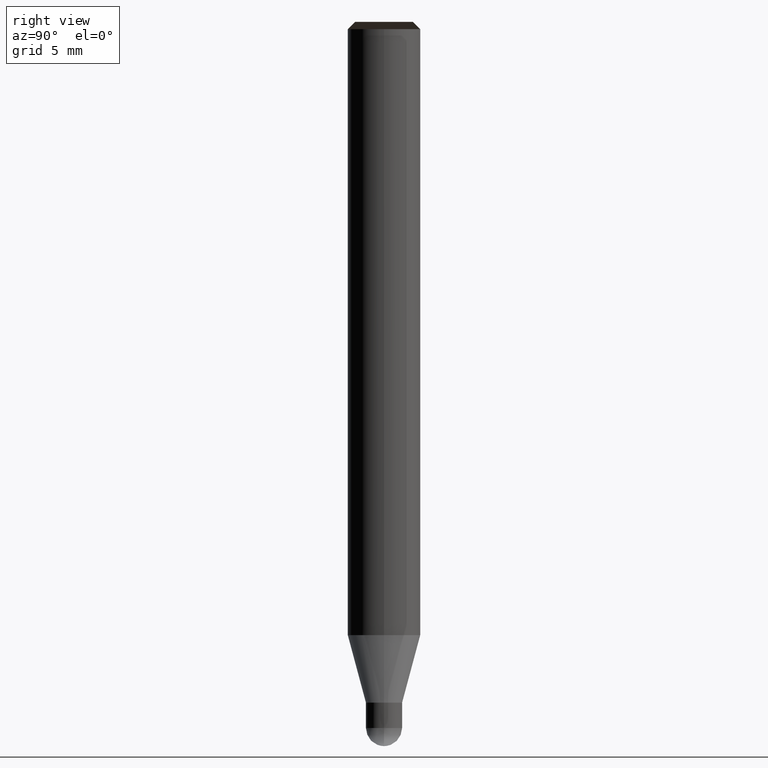
[diagram: clean part render]
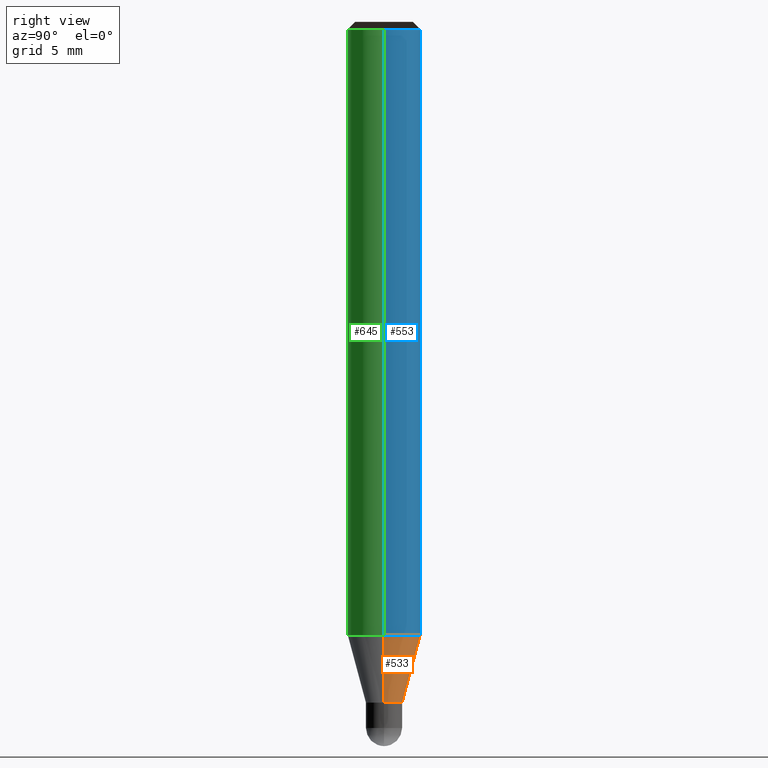
[diagram: same view with three faces highlighted in distinct colors, each labeled with its STEP entity id]
A machine part, right view with three faces highlighted in distinct colors.
Their STEP definitions:

[orange] entity #533 — the highlighted face is a freeform B-spline surface patch.
#343=CARTESIAN_POINT('',(1.0,0.0,-3.732050807569));
#344=CARTESIAN_POINT('',(1.0,1.0,-3.732050807569));
#345=CARTESIAN_POINT('',(0.0,1.0,-3.732050807569));
#346=CARTESIAN_POINT('',(-1.0,1.0,-3.732050807569));
#347=CARTESIAN_POINT('',(-1.0,0.0,-3.732050807569));
#358=CARTESIAN_POINT('',(2.0,0.0,0.0));
#359=CARTESIAN_POINT('',(2.0,2.0,0.0));
#360=CARTESIAN_POINT('',(0.0,2.0,0.0));
#361=CARTESIAN_POINT('',(-2.0,2.0,0.0));
#362=CARTESIAN_POINT('',(-2.0,0.0,0.0));
#514=(
BOUNDED_SURFACE()
B_SPLINE_SURFACE(1,2,(
(#343,#344,#345,#346,#347),
(#358,#359,#360,#361,#362)
), .UNSPECIFIED.,.F.,.F.,.F.)
B_SPLINE_SURFACE_WITH_KNOTS((2,2),(3,2,3),(
0.0,1.0),(
0.0,0.5,1.0), .UNSPECIFIED.)
GEOMETRIC_REPRESENTATION_ITEM()
RATIONAL_B_SPLINE_SURFACE(((1.0,0.707106781187,1.0,0.707106781187,1.0),
(1.0,0.707106781187,1.0,0.707106781187,1.0)
))
REPRESENTATION_ITEM('')
SURFACE()
);
#515=(
BOUNDED_CURVE()
B_SPLINE_CURVE(2,(#358,#359,#360,#361,#362),.UNSPECIFIED.,.F.,.F.)
B_SPLINE_CURVE_WITH_KNOTS((3,2,3),
(0.0,0.5,1.0),.UNSPECIFIED.)
CURVE()
GEOMETRIC_REPRESENTATION_ITEM()
RATIONAL_B_SPLINE_CURVE((1.0,0.707106781187,1.0,0.707106781187,1.0))
REPRESENTATION_ITEM('')
);
#516=(
BOUNDED_CURVE()
B_SPLINE_CURVE(1,(#362,#347),.UNSPECIFIED.,.F.,.F.)
B_SPLINE_CURVE_WITH_KNOTS((2,2),
(0.0,1.0),.UNSPECIFIED.)
CURVE()
GEOMETRIC_REPRESENTATION_ITEM()
RATIONAL_B_SPLINE_CURVE((1.0,1.0))
REPRESENTATION_ITEM('')
);
#517=(
BOUNDED_CURVE()
B_SPLINE_CURVE(2,(#347,#346,#345,#344,#343),.UNSPECIFIED.,.F.,.F.)
B_SPLINE_CURVE_WITH_KNOTS((3,2,3),
(0.0,0.5,1.0),.UNSPECIFIED.)
CURVE()
GEOMETRIC_REPRESENTATION_ITEM()
RATIONAL_B_SPLINE_CURVE((1.0,0.707106781187,1.0,0.707106781187,1.0))
REPRESENTATION_ITEM('')
);
#518=(
BOUNDED_CURVE()
B_SPLINE_CURVE(1,(#343,#358),.UNSPECIFIED.,.F.,.F.)
B_SPLINE_CURVE_WITH_KNOTS((2,2),
(0.0,1.0),.UNSPECIFIED.)
CURVE()
GEOMETRIC_REPRESENTATION_ITEM()
RATIONAL_B_SPLINE_CURVE((1.0,1.0))
REPRESENTATION_ITEM('')
);
#519=VERTEX_POINT('',#343);
#520=VERTEX_POINT('',#347);
#521=VERTEX_POINT('',#358);
#522=VERTEX_POINT('',#362);
#523=EDGE_CURVE('',#521,#522,#515,.T.);
#524=EDGE_CURVE('',#522,#520,#516,.T.);
#525=EDGE_CURVE('',#520,#519,#517,.T.);
#526=EDGE_CURVE('',#519,#521,#518,.T.);
#527=ORIENTED_EDGE('',*,*,#523,.T.);
#528=ORIENTED_EDGE('',*,*,#524,.T.);
#529=ORIENTED_EDGE('',*,*,#525,.T.);
#530=ORIENTED_EDGE('',*,*,#526,.T.);
#531=EDGE_LOOP('',(#527,#528,#529,#530));
#532=FACE_OUTER_BOUND('',#531,.T.);
#533=ADVANCED_FACE('',(#532),#514,.T.);

[blue] entity #553 — the highlighted face is a freeform B-spline surface patch.
#358=CARTESIAN_POINT('',(2.0,0.0,0.0));
#359=CARTESIAN_POINT('',(2.0,2.0,0.0));
#360=CARTESIAN_POINT('',(0.0,2.0,0.0));
#361=CARTESIAN_POINT('',(-2.0,2.0,0.0));
#362=CARTESIAN_POINT('',(-2.0,0.0,0.0));
#363=CARTESIAN_POINT('',(2.0,0.0,33.467949192431));
#364=CARTESIAN_POINT('',(2.0,2.0,33.467949192431));
#365=CARTESIAN_POINT('',(0.0,2.0,33.467949192431));
#366=CARTESIAN_POINT('',(-2.0,2.0,33.467949192431));
#367=CARTESIAN_POINT('',(-2.0,0.0,33.467949192431));
#534=(
BOUNDED_SURFACE()
B_SPLINE_SURFACE(1,2,(
(#358,#359,#360,#361,#362),
(#363,#364,#365,#366,#367)
), .UNSPECIFIED.,.F.,.F.,.F.)
B_SPLINE_SURFACE_WITH_KNOTS((2,2),(3,2,3),(
0.0,1.0),(
0.0,0.5,1.0), .UNSPECIFIED.)
GEOMETRIC_REPRESENTATION_ITEM()
RATIONAL_B_SPLINE_SURFACE(((1.0,0.707106781187,1.0,0.707106781187,1.0),
(1.0,0.707106781187,1.0,0.707106781187,1.0)
))
REPRESENTATION_ITEM('')
SURFACE()
);
#535=(
BOUNDED_CURVE()
B_SPLINE_CURVE(2,(#363,#364,#365,#366,#367),.UNSPECIFIED.,.F.,.F.)
B_SPLINE_CURVE_WITH_KNOTS((3,2,3),
(0.0,0.5,1.0),.UNSPECIFIED.)
CURVE()
GEOMETRIC_REPRESENTATION_ITEM()
RATIONAL_B_SPLINE_CURVE((1.0,0.707106781187,1.0,0.707106781187,1.0))
REPRESENTATION_ITEM('')
);
#536=(
BOUNDED_CURVE()
B_SPLINE_CURVE(1,(#367,#362),.UNSPECIFIED.,.F.,.F.)
B_SPLINE_CURVE_WITH_KNOTS((2,2),
(0.0,1.0),.UNSPECIFIED.)
CURVE()
GEOMETRIC_REPRESENTATION_ITEM()
RATIONAL_B_SPLINE_CURVE((1.0,1.0))
REPRESENTATION_ITEM('')
);
#537=(
BOUNDED_CURVE()
B_SPLINE_CURVE(2,(#362,#361,#360,#359,#358),.UNSPECIFIED.,.F.,.F.)
B_SPLINE_CURVE_WITH_KNOTS((3,2,3),
(0.0,0.5,1.0),.UNSPECIFIED.)
CURVE()
GEOMETRIC_REPRESENTATION_ITEM()
RATIONAL_B_SPLINE_CURVE((1.0,0.707106781187,1.0,0.707106781187,1.0))
REPRESENTATION_ITEM('')
);
#538=(
BOUNDED_CURVE()
B_SPLINE_CURVE(1,(#358,#363),.UNSPECIFIED.,.F.,.F.)
B_SPLINE_CURVE_WITH_KNOTS((2,2),
(0.0,1.0),.UNSPECIFIED.)
CURVE()
GEOMETRIC_REPRESENTATION_ITEM()
RATIONAL_B_SPLINE_CURVE((1.0,1.0))
REPRESENTATION_ITEM('')
);
#539=VERTEX_POINT('',#358);
#540=VERTEX_POINT('',#362);
#541=VERTEX_POINT('',#363);
#542=VERTEX_POINT('',#367);
#543=EDGE_CURVE('',#541,#542,#535,.T.);
#544=EDGE_CURVE('',#542,#540,#536,.T.);
#545=EDGE_CURVE('',#540,#539,#537,.T.);
#546=EDGE_CURVE('',#539,#541,#538,.T.);
#547=ORIENTED_EDGE('',*,*,#543,.T.);
#548=ORIENTED_EDGE('',*,*,#544,.T.);
#549=ORIENTED_EDGE('',*,*,#545,.T.);
#550=ORIENTED_EDGE('',*,*,#546,.T.);
#551=EDGE_LOOP('',(#547,#548,#549,#550));
#552=FACE_OUTER_BOUND('',#551,.T.);
#553=ADVANCED_FACE('',(#552),#534,.T.);

[green] entity #645 — the highlighted face is a freeform B-spline surface patch.
#358=CARTESIAN_POINT('',(2.0,0.0,0.0));
#362=CARTESIAN_POINT('',(-2.0,0.0,0.0));
#363=CARTESIAN_POINT('',(2.0,0.0,33.467949192431));
#367=CARTESIAN_POINT('',(-2.0,0.0,33.467949192431));
#374=CARTESIAN_POINT('',(-2.0,-2.0,0.0));
#375=CARTESIAN_POINT('',(0.0,-2.0,0.0));
#376=CARTESIAN_POINT('',(2.0,-2.0,0.0));
#377=CARTESIAN_POINT('',(-2.0,-2.0,33.467949192431));
#378=CARTESIAN_POINT('',(0.0,-2.0,33.467949192431));
#379=CARTESIAN_POINT('',(2.0,-2.0,33.467949192431));
#626=(
BOUNDED_SURFACE()
B_SPLINE_SURFACE(1,2,(
(#362,#374,#375,#376,#358),
(#367,#377,#378,#379,#363)
), .UNSPECIFIED.,.F.,.F.,.F.)
B_SPLINE_SURFACE_WITH_KNOTS((2,2),(3,2,3),(
0.0,1.0),(
0.0,0.5,1.0), .UNSPECIFIED.)
GEOMETRIC_REPRESENTATION_ITEM()
RATIONAL_B_SPLINE_SURFACE(((1.0,0.707106781187,1.0,0.707106781187,1.0),
(1.0,0.707106781187,1.0,0.707106781187,1.0)
))
REPRESENTATION_ITEM('')
SURFACE()
);
#627=(
BOUNDED_CURVE()
B_SPLINE_CURVE(1,(#367,#362),.UNSPECIFIED.,.F.,.F.)
B_SPLINE_CURVE_WITH_KNOTS((2,2),
(0.0,1.0),.UNSPECIFIED.)
CURVE()
GEOMETRIC_REPRESENTATION_ITEM()
RATIONAL_B_SPLINE_CURVE((1.0,1.0))
REPRESENTATION_ITEM('')
);
#628=(
BOUNDED_CURVE()
B_SPLINE_CURVE(2,(#362,#374,#375,#376,#358),.UNSPECIFIED.,.F.,.F.)
B_SPLINE_CURVE_WITH_KNOTS((3,2,3),
(0.0,0.5,1.0),.UNSPECIFIED.)
CURVE()
GEOMETRIC_REPRESENTATION_ITEM()
RATIONAL_B_SPLINE_CURVE((1.0,0.707106781187,1.0,0.707106781187,1.0))
REPRESENTATION_ITEM('')
);
#629=(
BOUNDED_CURVE()
B_SPLINE_CURVE(1,(#358,#363),.UNSPECIFIED.,.F.,.F.)
B_SPLINE_CURVE_WITH_KNOTS((2,2),
(0.0,1.0),.UNSPECIFIED.)
CURVE()
GEOMETRIC_REPRESENTATION_ITEM()
RATIONAL_B_SPLINE_CURVE((1.0,1.0))
REPRESENTATION_ITEM('')
);
#630=(
BOUNDED_CURVE()
B_SPLINE_CURVE(2,(#363,#379,#378,#377,#367),.UNSPECIFIED.,.F.,.F.)
B_SPLINE_CURVE_WITH_KNOTS((3,2,3),
(0.0,0.5,1.0),.UNSPECIFIED.)
CURVE()
GEOMETRIC_REPRESENTATION_ITEM()
RATIONAL_B_SPLINE_CURVE((1.0,0.707106781187,1.0,0.707106781187,1.0))
REPRESENTATION_ITEM('')
);
#631=VERTEX_POINT('',#358);
#632=VERTEX_POINT('',#362);
#633=VERTEX_POINT('',#363);
#634=VERTEX_POINT('',#367);
#635=EDGE_CURVE('',#634,#632,#627,.T.);
#636=EDGE_CURVE('',#632,#631,#628,.T.);
#637=EDGE_CURVE('',#631,#633,#629,.T.);
#638=EDGE_CURVE('',#633,#634,#630,.T.);
#639=ORIENTED_EDGE('',*,*,#635,.T.);
#640=ORIENTED_EDGE('',*,*,#636,.T.);
#641=ORIENTED_EDGE('',*,*,#637,.T.);
#642=ORIENTED_EDGE('',*,*,#638,.T.);
#643=EDGE_LOOP('',(#639,#640,#641,#642));
#644=FACE_OUTER_BOUND('',#643,.T.);
#645=ADVANCED_FACE('',(#644),#626,.T.);